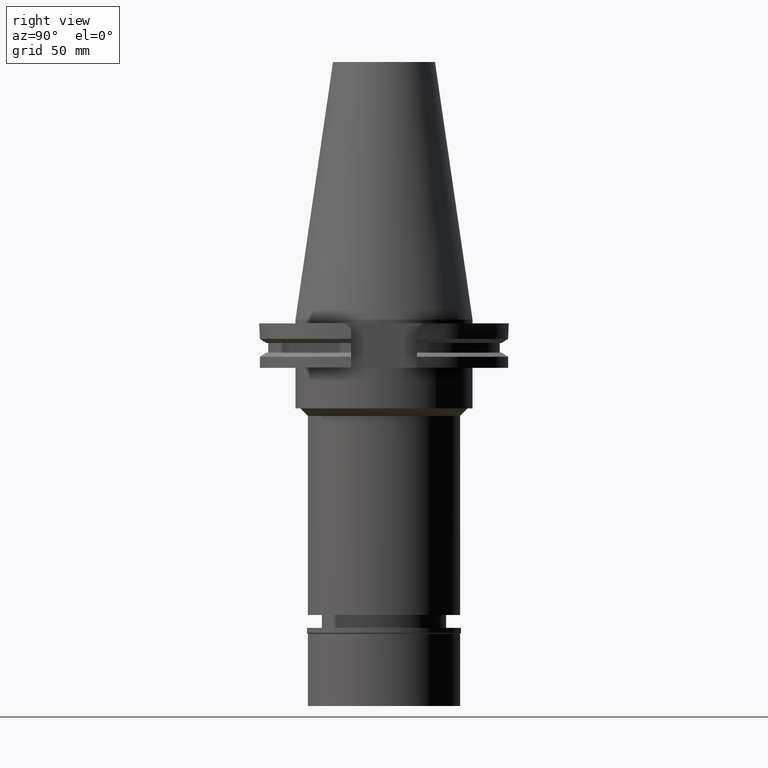
[diagram: clean part render]
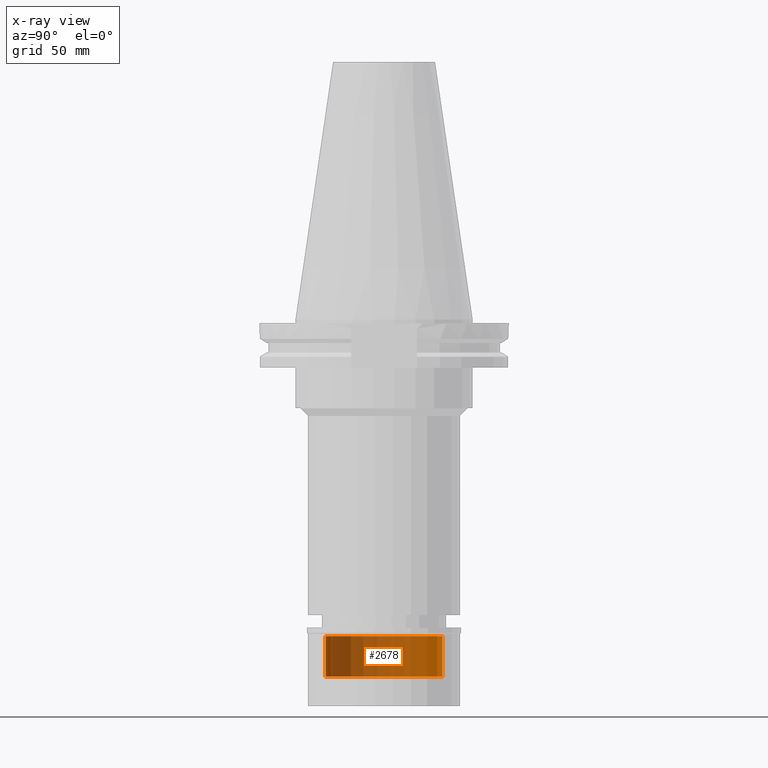
[diagram: x-ray — body ghosted, one internal face saturated and labeled with its STEP entity id]
A machine part, right view, then the same camera in x-ray: the body is ghosted and one INTERNAL B-rep face — a face not visible from any outside direction — is saturated and labeled: STEP entity #2678.
In plain terms, the highlighted cylindrical surface (partial cylindrical patch) has radius 23 mm, axis along (0, 0, -1).
Its self-contained STEP definition (entity closure, byte-faithful):
#127 = ORIENTED_EDGE ( 'NONE', *, *, #2636, .T. ) ;
#355 = EDGE_CURVE ( 'NONE', #1748, #2571, #1872, .T. ) ;
#415 = CARTESIAN_POINT ( 'NONE',  ( 0.0000000000000000000, -23.00000000000000000, -140.9000000000000057 ) ) ;
#419 = AXIS2_PLACEMENT_3D ( 'NONE', #2460, #796, #1240 ) ;
#430 = DIRECTION ( 'NONE',  ( 0.0000000000000000000, 0.0000000000000000000, -1.000000000000000000 ) ) ;
#543 = CIRCLE ( 'NONE', #2360, 23.00000000000000000 ) ;
#796 = DIRECTION ( 'NONE',  ( 0.0000000000000000000, 0.0000000000000000000, -1.000000000000000000 ) ) ;
#803 = VECTOR ( 'NONE', #1658, 1000.000000000000000 ) ;
#907 = AXIS2_PLACEMENT_3D ( 'NONE', #1394, #430, #2374 ) ;
#924 = CARTESIAN_POINT ( 'NONE',  ( 0.0000000000000000000, -23.00000000000000000, -124.8999999999999915 ) ) ;
#1003 = EDGE_LOOP ( 'NONE', ( #1483, #3012, #1101, #127 ) ) ;
#1101 = ORIENTED_EDGE ( 'NONE', *, *, #1479, .T. ) ;
#1140 = VERTEX_POINT ( 'NONE', #3074 ) ;
#1240 = DIRECTION ( 'NONE',  ( 0.0000000000000000000, -1.000000000000000000, 0.0000000000000000000 ) ) ;
#1275 = DIRECTION ( 'NONE',  ( 0.0000000000000000000, 0.0000000000000000000, 1.000000000000000000 ) ) ;
#1394 = CARTESIAN_POINT ( 'NONE',  ( 0.0000000000000000000, 1.392729572329999894E-14, 113.7250000000000085 ) ) ;
#1479 = EDGE_CURVE ( 'NONE', #1748, #1140, #1921, .T. ) ;
#1483 = ORIENTED_EDGE ( 'NONE', *, *, #2408, .T. ) ;
#1549 = DIRECTION ( 'NONE',  ( 0.0000000000000000000, 1.000000000000000000, 0.0000000000000000000 ) ) ;
#1582 = CARTESIAN_POINT ( 'NONE',  ( 0.0000000000000000000, 1.392729572329999894E-14, -140.9000000000000057 ) ) ;
#1622 = CARTESIAN_POINT ( 'NONE',  ( 0.0000000000000000000, -23.00000000000000000, -124.8999999999999915 ) ) ;
#1633 = DIRECTION ( 'NONE',  ( 0.0000000000000000000, 0.0000000000000000000, -1.000000000000000000 ) ) ;
#1640 = FACE_OUTER_BOUND ( 'NONE', #1003, .T. ) ;
#1658 = DIRECTION ( 'NONE',  ( 0.0000000000000000000, 0.0000000000000000000, -1.000000000000000000 ) ) ;
#1748 = VERTEX_POINT ( 'NONE', #1622 ) ;
#1872 = LINE ( 'NONE', #924, #2002 ) ;
#1921 = CIRCLE ( 'NONE', #419, 23.00000000000000000 ) ;
#2002 = VECTOR ( 'NONE', #1633, 1000.000000000000000 ) ;
#2095 = LINE ( 'NONE', #2357, #803 ) ;
#2357 = CARTESIAN_POINT ( 'NONE',  ( 0.0000000000000000000, 23.00000000000000000, -124.8999999999999915 ) ) ;
#2360 = AXIS2_PLACEMENT_3D ( 'NONE', #1582, #1275, #1549 ) ;
#2374 = DIRECTION ( 'NONE',  ( 0.0000000000000000000, -1.000000000000000000, 0.0000000000000000000 ) ) ;
#2408 = EDGE_CURVE ( 'NONE', #2817, #2571, #543, .T. ) ;
#2460 = CARTESIAN_POINT ( 'NONE',  ( 0.0000000000000000000, 1.392729572329999894E-14, -124.8999999999999915 ) ) ;
#2571 = VERTEX_POINT ( 'NONE', #415 ) ;
#2607 = CYLINDRICAL_SURFACE ( 'NONE', #907, 23.00000000000000000 ) ;
#2636 = EDGE_CURVE ( 'NONE', #1140, #2817, #2095, .T. ) ;
#2678 = ADVANCED_FACE ( 'NONE', ( #1640 ), #2607, .T. ) ;
#2688 = CARTESIAN_POINT ( 'NONE',  ( 0.0000000000000000000, 23.00000000000000000, -140.9000000000000057 ) ) ;
#2817 = VERTEX_POINT ( 'NONE', #2688 ) ;
#3012 = ORIENTED_EDGE ( 'NONE', *, *, #355, .F. ) ;
#3074 = CARTESIAN_POINT ( 'NONE',  ( 0.0000000000000000000, 23.00000000000000000, -124.8999999999999915 ) ) ;